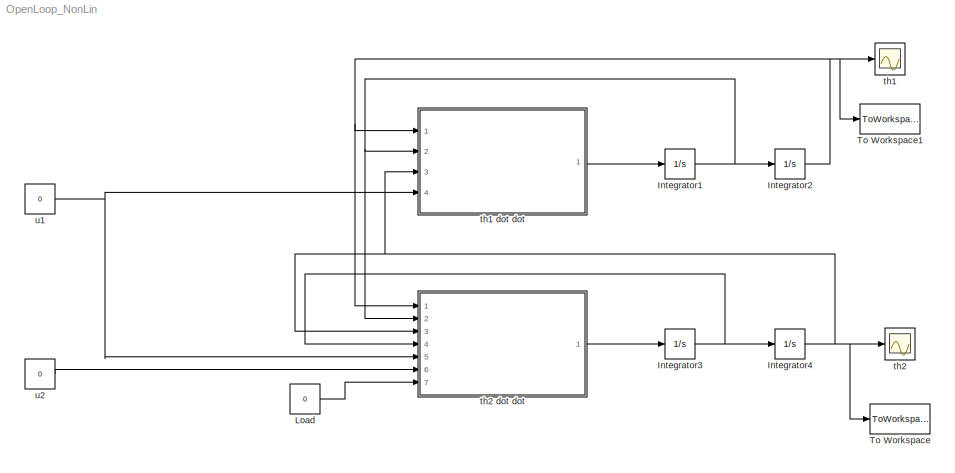
MODEL OpenLoop_NonLin
KIND model
BLOCK [Integrator] Integrator1
  Ports = [1, 1]
  SID = 3
BLOCK [Integrator] Integrator2
  InitialCondition = pi/2.1
  Ports = [1, 1]
  SID = 4
BLOCK [Integrator] Integrator3
  Ports = [1, 1]
  SID = 5
BLOCK [Integrator] Integrator4
  Ports = [1, 1]
  SID = 6
BLOCK [Constant] Load
  SID = 8
  Value = 0
BLOCK [ToWorkspace] To Workspace
  MaxDataPoints = inf
  Ports = [1]
  SID = 18
  SampleTime = -1
  VariableName = simth2
BLOCK [ToWorkspace] To Workspace1
  MaxDataPoints = inf
  Ports = [1]
  SID = 19
  SampleTime = -1
  VariableName = simth1
BLOCK [Scope] th1
  DataFormat = StructureWithTime
  Floating = off
  NumInputPorts = 1
  Ports = [1]
  SID = 17
  SampleTime = 0
  SaveName = ScopeData1
  ShowLegends = off
  ZoomMode = xonly
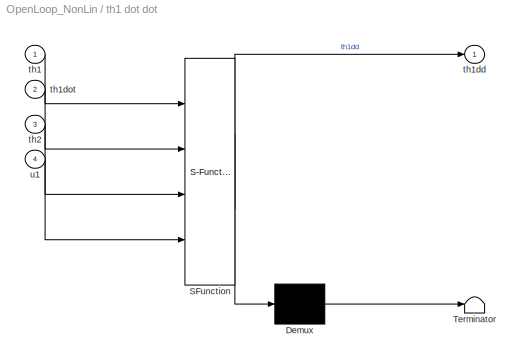
BLOCK [SubSystem] th1 dot dot
  ErrorFcn = Stateflow.Translate.translate
  FunctionWithSeparateData = off
  MaskDescription = Embedded MATLAB block
  MaskDisplay = bgColor = Simulink.Root.ColorString2Rgb(get_param(gcbh, 'BackgroundColor')); image(imread('private/eml_membrane_16.png','png','BackgroundColor',bgColor(1:3)),'center'); disp([10 10 'fcn']);
  MaskHideContents = off
  MaskIconFrame = on
  MaskIconOpaque = off
  MaskIconRotate = none
  MaskIconUnits = normalized
  MaskPortRotate = default
  MaskSelfModifiable = on
  MaskType = Stateflow
  MinAlgLoopOccurrences = off
  Opaque = off
  PermitHierarchicalResolution = ExplicitOnly
  Ports = [4, 1]
  PropExecContextOutsideSubsystem = off
  RTWSystemCode = Auto
  RequestExecContextInheritance = off
  SFBlockType = MATLAB Function
  SID = 1
  TreatAsAtomicUnit = on
BLOCK [Demux] th1 dot dot/ Demux 
  Outputs = 1
  Ports = [1, 1]
  SID = 1::35
BLOCK [S-Function] th1 dot dot/ SFunction 
  EnableBusSupport = on
  FunctionName = sf_sfun
  PortCounts = [4 2]
  Ports = [4, 2]
  SID = 1::34
  Tag = Stateflow S-Function OpenLoop_NonLin 2
BLOCK [Terminator] th1 dot dot/ Terminator 
  SID = 1::37
BLOCK [Inport] th1 dot dot/th1
  IconDisplay = Port number
  SID = 1::1
BLOCK [Outport] th1 dot dot/th1dd
  IconDisplay = Port number
  SID = 1::5
BLOCK [Inport] th1 dot dot/th1dot
  IconDisplay = Port number
  Port = 2
  SID = 1::23
BLOCK [Inport] th1 dot dot/th2
  IconDisplay = Port number
  Port = 3
  SID = 1::24
BLOCK [Inport] th1 dot dot/u1
  IconDisplay = Port number
  Port = 4
  SID = 1::28
BLOCK [Scope] th2
  DataFormat = StructureWithTime
  Floating = off
  NumInputPorts = 1
  Ports = [1]
  SID = 16
  SampleTime = 0
  ShowLegends = off
  ZoomMode = xonly
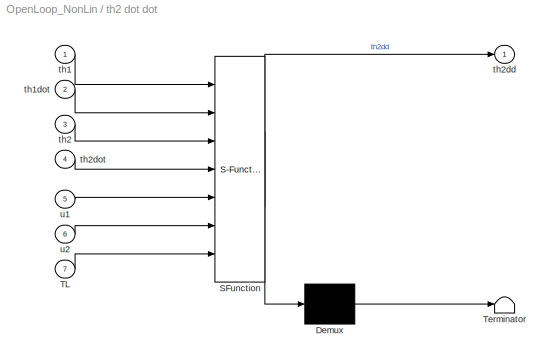
BLOCK [SubSystem] th2 dot dot
  ErrorFcn = Stateflow.Translate.translate
  FunctionWithSeparateData = off
  MaskDescription = Embedded MATLAB block
  MaskDisplay = bgColor = Simulink.Root.ColorString2Rgb(get_param(gcbh, 'BackgroundColor')); image(imread('private/eml_membrane_16.png','png','BackgroundColor',bgColor(1:3)),'center'); disp([10 10 'fcn']);
  MaskHideContents = off
  MaskIconFrame = on
  MaskIconOpaque = off
  MaskIconRotate = none
  MaskIconUnits = normalized
  MaskPortRotate = default
  MaskSelfModifiable = on
  MaskType = Stateflow
  MinAlgLoopOccurrences = off
  Opaque = off
  PermitHierarchicalResolution = ExplicitOnly
  Ports = [7, 1]
  PropExecContextOutsideSubsystem = off
  RTWSystemCode = Auto
  RequestExecContextInheritance = off
  SFBlockType = MATLAB Function
  SID = 7
  TreatAsAtomicUnit = on
BLOCK [Demux] th2 dot dot/ Demux 
  Outputs = 1
  Ports = [1, 1]
  SID = 7::35
BLOCK [S-Function] th2 dot dot/ SFunction 
  EnableBusSupport = on
  FunctionName = sf_sfun
  PortCounts = [7 2]
  Ports = [7, 2]
  SID = 7::34
  Tag = Stateflow S-Function OpenLoop_NonLin 1
BLOCK [Terminator] th2 dot dot/ Terminator 
  SID = 7::37
BLOCK [Inport] th2 dot dot/TL
  IconDisplay = Port number
  Port = 7
  SID = 7::38
BLOCK [Inport] th2 dot dot/th1
  IconDisplay = Port number
  SID = 7::1
BLOCK [Inport] th2 dot dot/th1dot
  IconDisplay = Port number
  Port = 2
  SID = 7::23
BLOCK [Inport] th2 dot dot/th2
  IconDisplay = Port number
  Port = 3
  SID = 7::24
BLOCK [Outport] th2 dot dot/th2dd
  IconDisplay = Port number
  SID = 7::5
BLOCK [Inport] th2 dot dot/th2dot
  IconDisplay = Port number
  Port = 4
  SID = 7::27
BLOCK [Inport] th2 dot dot/u1
  IconDisplay = Port number
  Port = 5
  SID = 7::39
BLOCK [Inport] th2 dot dot/u2
  IconDisplay = Port number
  Port = 6
  SID = 7::29
BLOCK [Constant] u1
  SID = 26
  Value = 0
BLOCK [Constant] u2
  SID = 13
  Value = 0
NET Integrator1:1 -> Integrator2:1, th1 dot dot:2, th2 dot dot:2
NET Integrator2:1 -> To Workspace1:1, th1 dot dot:1, th1:1, th2 dot dot:1
NET Integrator3:1 -> Integrator4:1, th2 dot dot:4
NET Integrator4:1 -> To Workspace:1, th1 dot dot:3, th2 dot dot:3, th2:1
LINE Load:1 -> th2 dot dot:7
LINE th1 dot dot/ Demux :1 -> th1 dot dot/ Terminator :1
LINE th1 dot dot/ SFunction :1 -> th1 dot dot/ Demux :1
LINE th1 dot dot/ SFunction :2 -> th1 dot dot/th1dd:1
LINE th1 dot dot/th1:1 -> th1 dot dot/ SFunction :1
LINE th1 dot dot/th1dot:1 -> th1 dot dot/ SFunction :2
LINE th1 dot dot/th2:1 -> th1 dot dot/ SFunction :3
LINE th1 dot dot/u1:1 -> th1 dot dot/ SFunction :4
LINE th1 dot dot:1 -> Integrator1:1
LINE th2 dot dot/ Demux :1 -> th2 dot dot/ Terminator :1
LINE th2 dot dot/ SFunction :1 -> th2 dot dot/ Demux :1
LINE th2 dot dot/ SFunction :2 -> th2 dot dot/th2dd:1
LINE th2 dot dot/TL:1 -> th2 dot dot/ SFunction :7
LINE th2 dot dot/th1:1 -> th2 dot dot/ SFunction :1
LINE th2 dot dot/th1dot:1 -> th2 dot dot/ SFunction :2
LINE th2 dot dot/th2:1 -> th2 dot dot/ SFunction :3
LINE th2 dot dot/th2dot:1 -> th2 dot dot/ SFunction :4
LINE th2 dot dot/u1:1 -> th2 dot dot/ SFunction :5
LINE th2 dot dot/u2:1 -> th2 dot dot/ SFunction :6
LINE th2 dot dot:1 -> Integrator3:1
NET u1:1 -> th1 dot dot:4, th2 dot dot:5
LINE u2:1 -> th2 dot dot:6
note: NET lines group one-source signal fan-out (src -> all destinations, sorted); 1:1 wires keep LINE
CHART th2 dot dot states=1 transitions=1
  STATE_LABEL 'eML_blk_kernel()'
CHART th1 dot dot states=1 transitions=1
  STATE_LABEL 'eML_blk_kernel()'
